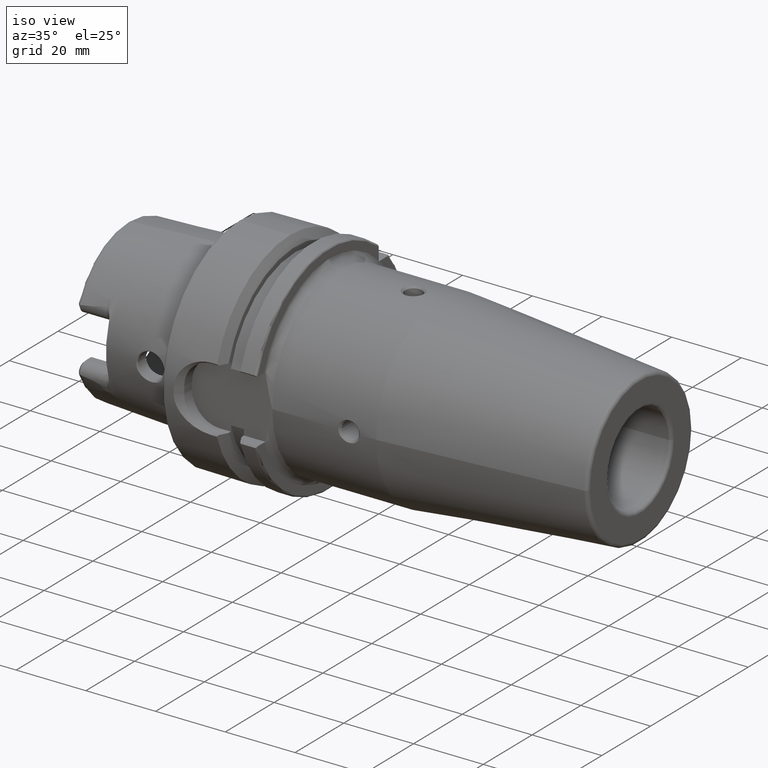
[diagram: clean part render]
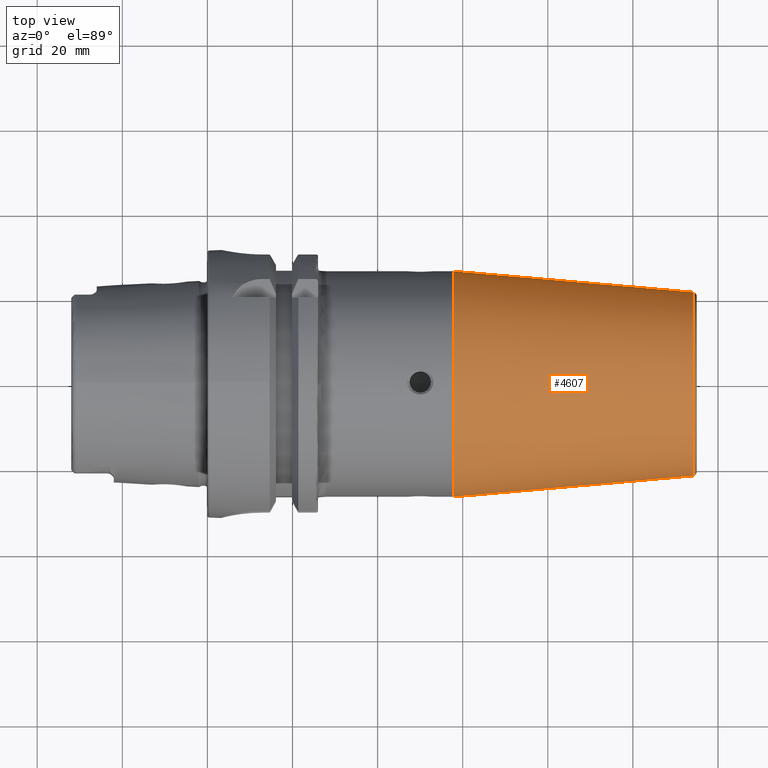
[diagram: tour spotlight — one face highlighted and labeled with its STEP entity id]
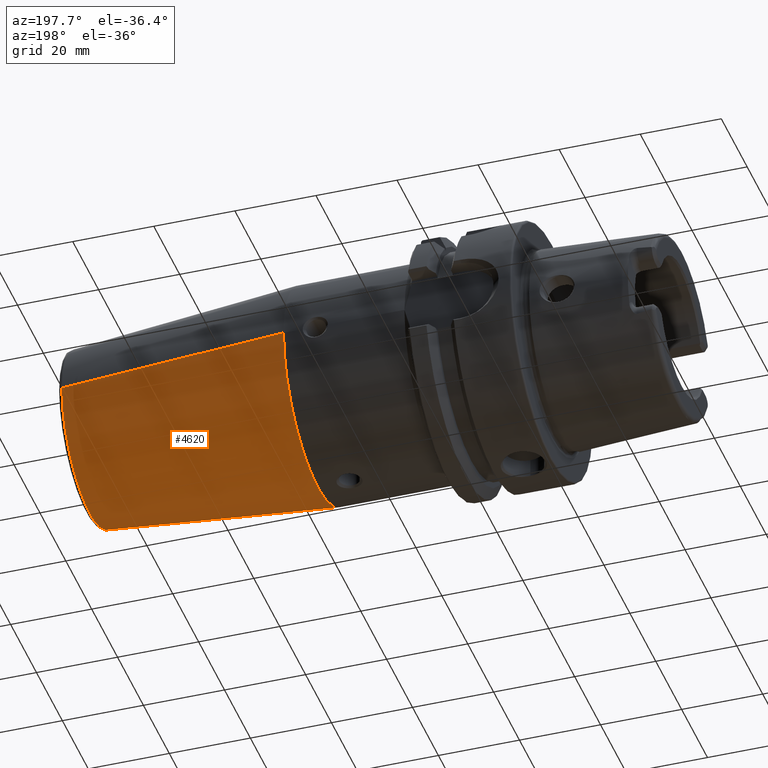
[diagram: tour spotlight — one face highlighted and labeled with its STEP entity id]
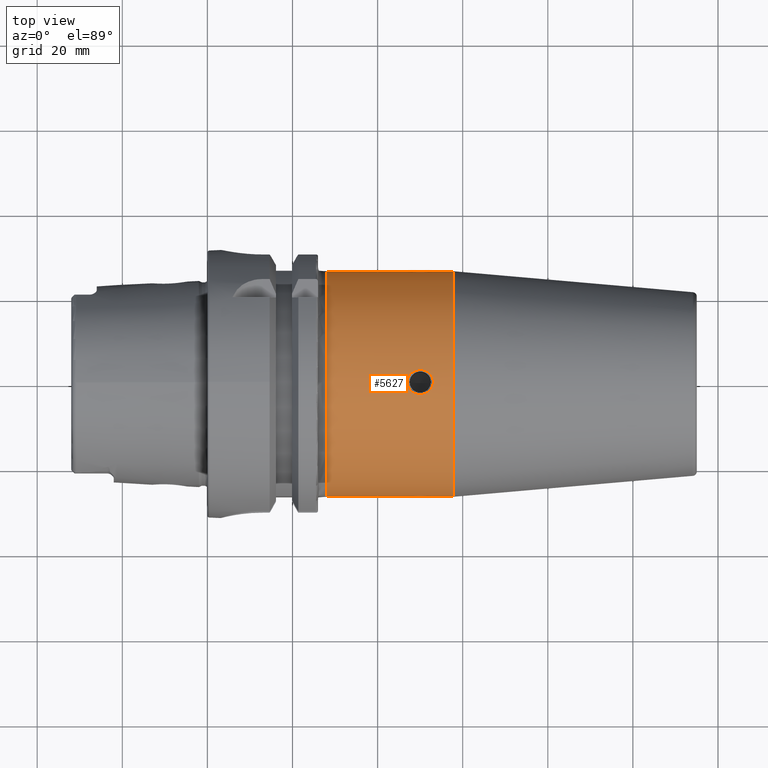
[diagram: tour spotlight — one face highlighted and labeled with its STEP entity id]
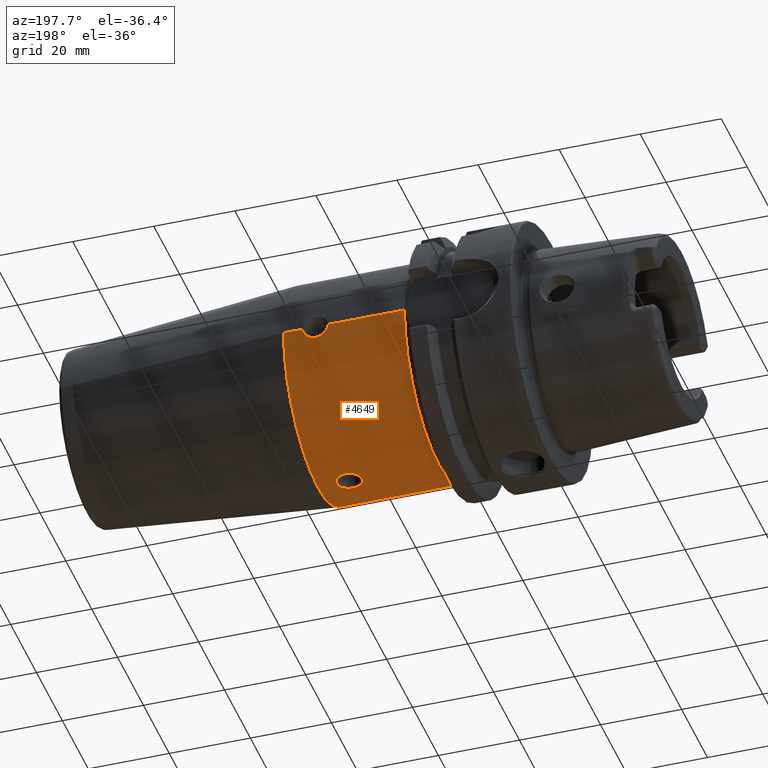
[diagram: tour spotlight — one face highlighted and labeled with its STEP entity id]
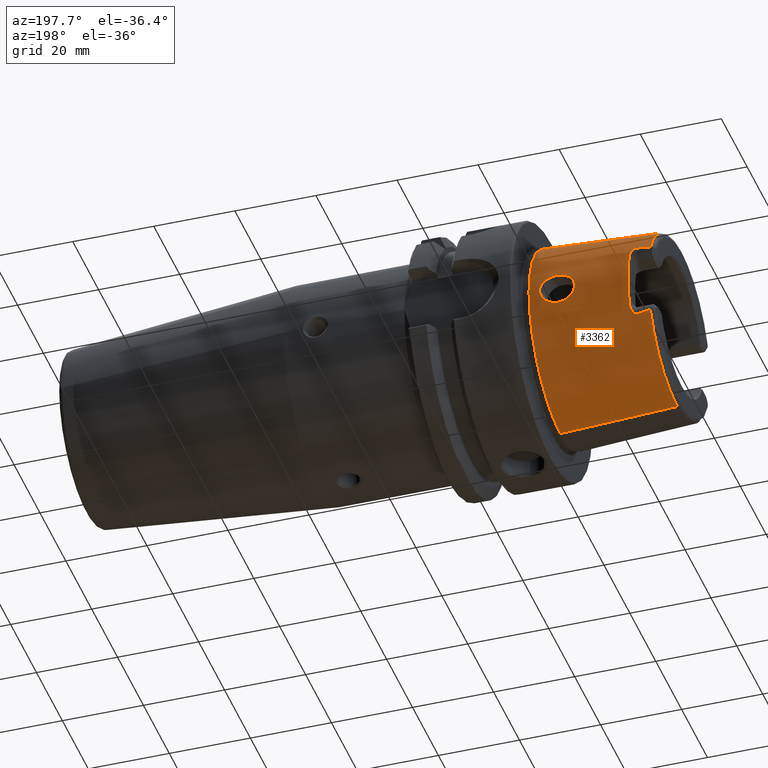
[diagram: tour spotlight — one face highlighted and labeled with its STEP entity id]
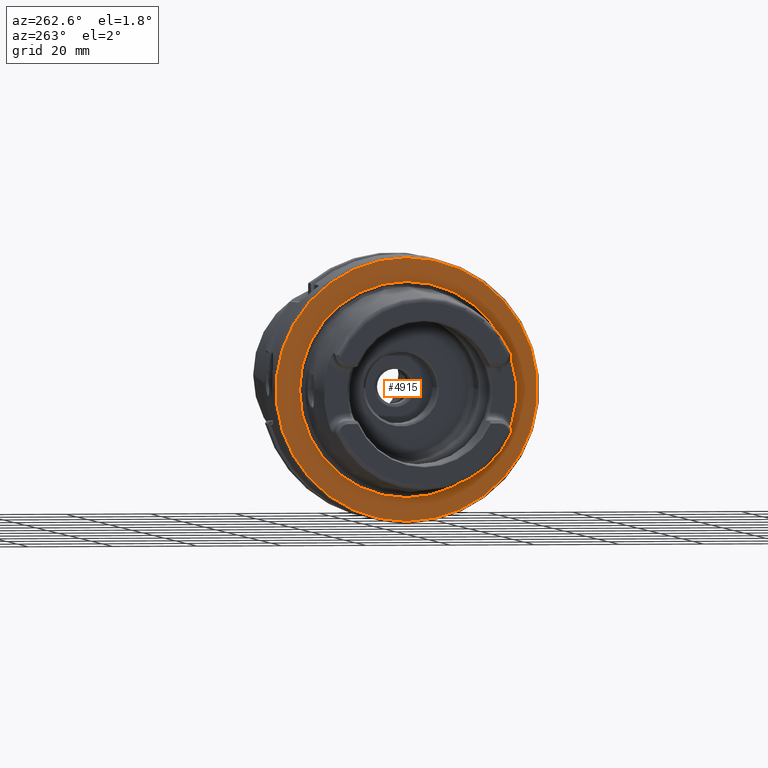
[diagram: tour spotlight — one face highlighted and labeled with its STEP entity id]
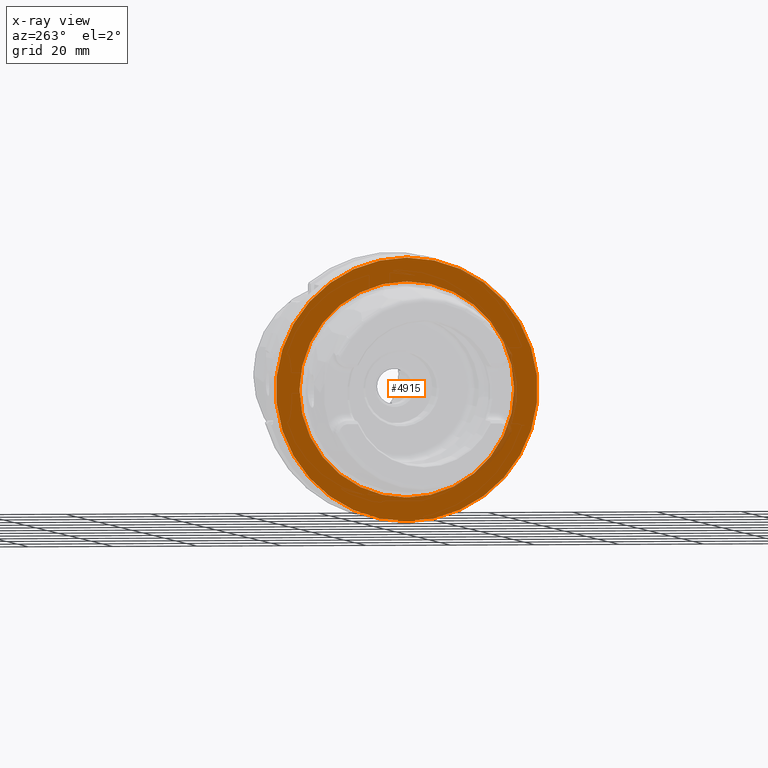
[diagram: x-ray of the same camera — body ghosted, this tour face saturated]
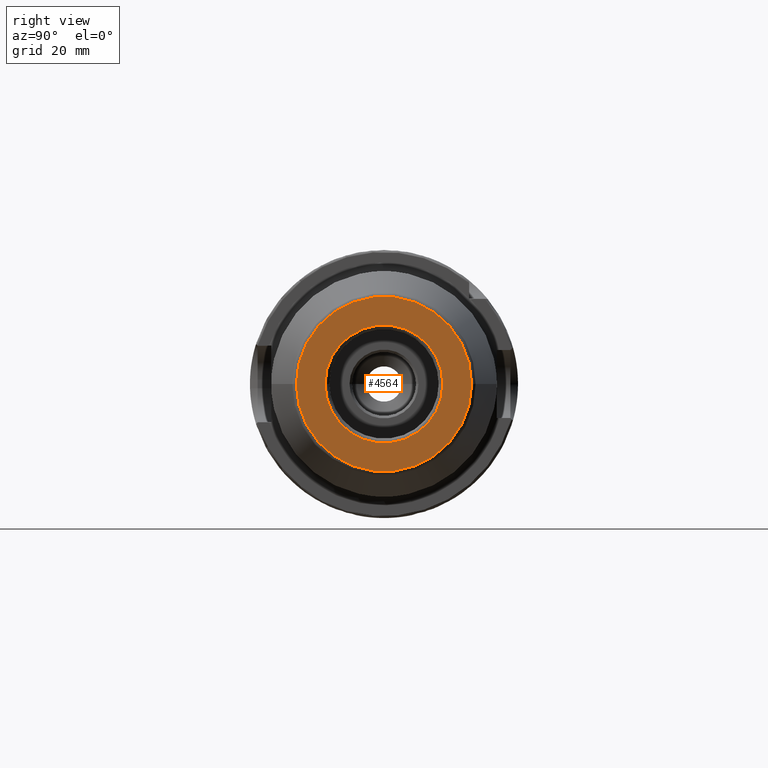
[diagram: tour spotlight — one face highlighted and labeled with its STEP entity id]
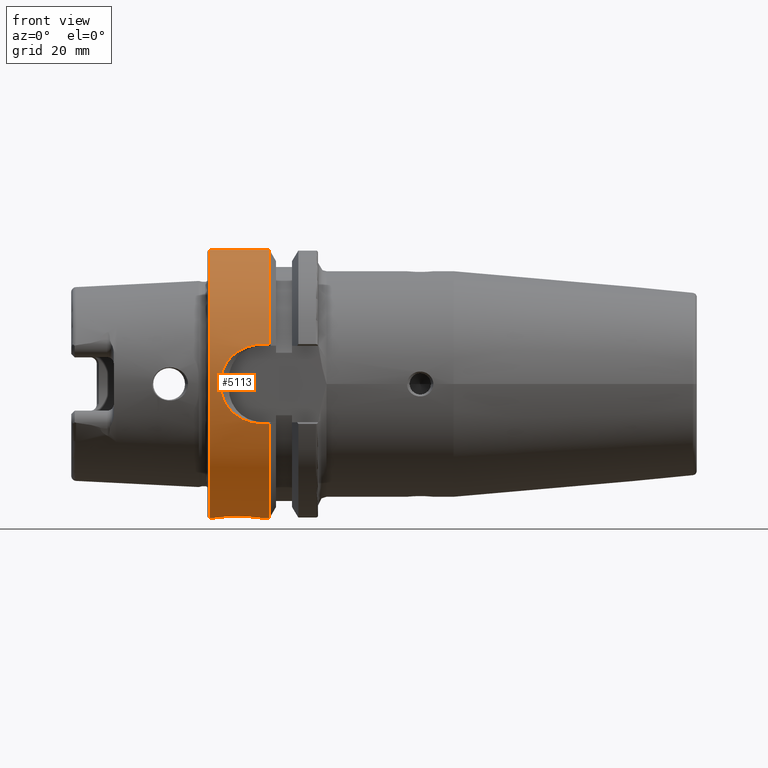
[diagram: tour spotlight — one face highlighted and labeled with its STEP entity id]
A machine part: a face-by-face anatomy tour. The part has 204 B-rep faces; the first image is the clean iso view, then the 8 largest visible faces are spotlighted one at a time (largest first), each with its STEP entity span.

Face 1 — top view, entity #4607. In plain terms, the highlighted conical surface has half-angle 5 deg.
Definition (entity closure, byte-faithful):
#1131=CARTESIAN_POINT('',(4.492399073967E0,0.E0,0.E0));
#1132=DIRECTION('',(1.E0,0.E0,0.E0));
#1133=DIRECTION('',(0.E0,1.E0,-9.979134757775E-11));
#1134=AXIS2_PLACEMENT_3D('',#1131,#1132,#1133);
#1136=DIRECTION('',(9.961946980917E-1,8.715574274766E-2,-7.119137489951E-10));
#1137=VECTOR('',#1136,2.223861538521E0);
#1138=CARTESIAN_POINT('',(2.277000000002E0,-1.0435E0,5.206615560648E-11));
#1139=LINE('',#1138,#1137);
#1145=DIRECTION('',(9.961946980917E-1,-8.715574274766E-2,7.119138695488E-10));
#1146=VECTOR('',#1145,2.223861538521E0);
#1147=CARTESIAN_POINT('',(2.277000000002E0,1.0435E0,-5.206618755445E-11));
#1148=LINE('',#1147,#1146);
#2089=CARTESIAN_POINT('',(2.277E0,0.E0,0.E0));
#2090=DIRECTION('',(-1.E0,0.E0,0.E0));
#2091=DIRECTION('',(0.E0,-1.E0,0.E0));
#2092=AXIS2_PLACEMENT_3D('',#2089,#2090,#2091);
#3163=CARTESIAN_POINT('',(2.277E0,1.0435E0,0.E0));
#3164=CARTESIAN_POINT('',(2.277E0,-1.0435E0,0.E0));
#3165=VERTEX_POINT('',#3163);
#3166=VERTEX_POINT('',#3164);
#3299=CARTESIAN_POINT('',(4.492399073967E0,-8.496776958420E-1,
8.479075555202E-11));
#3300=CARTESIAN_POINT('',(4.492399073967E0,8.496776958420E-1,
-8.479085960753E-11));
#3301=VERTEX_POINT('',#3299);
#3302=VERTEX_POINT('',#3300);
#4593=CARTESIAN_POINT('',(3.384699536984E0,0.E0,0.E0));
#4594=DIRECTION('',(-1.E0,0.E0,0.E0));
#4595=DIRECTION('',(0.E0,0.E0,-1.E0));
#4596=AXIS2_PLACEMENT_3D('',#4593,#4594,#4595);
#4597=CONICAL_SURFACE('',#4596,9.465888479210E-1,5.E0);
#4598=ORIENTED_EDGE('',*,*,#4587,.T.);
#4600=ORIENTED_EDGE('',*,*,#4599,.F.);
#4602=ORIENTED_EDGE('',*,*,#4601,.T.);
#4604=ORIENTED_EDGE('',*,*,#4603,.T.);
#4605=EDGE_LOOP('',(#4598,#4600,#4602,#4604));
#4606=FACE_OUTER_BOUND('',#4605,.F.);
#4607=ADVANCED_FACE('',(#4606),#4597,.T.);
#1135=CIRCLE('',#1134,8.496776958420E-1);
#2093=CIRCLE('',#2092,1.0435E0);
#4587=EDGE_CURVE('',#3302,#3301,#1135,.T.);
#4599=EDGE_CURVE('',#3166,#3301,#1139,.T.);
#4601=EDGE_CURVE('',#3166,#3165,#2093,.T.);
#4603=EDGE_CURVE('',#3165,#3302,#1148,.T.);

Face 2 — auxiliary view, entity #4620. In plain terms, the highlighted conical surface has half-angle 5 deg.
Definition (entity closure, byte-faithful):
#1136=DIRECTION('',(9.961946980917E-1,8.715574274766E-2,-7.119137489951E-10));
#1137=VECTOR('',#1136,2.223861538521E0);
#1138=CARTESIAN_POINT('',(2.277000000002E0,-1.0435E0,5.206615560648E-11));
#1139=LINE('',#1138,#1137);
#1140=CARTESIAN_POINT('',(4.492399073967E0,0.E0,0.E0));
#1141=DIRECTION('',(1.E0,0.E0,0.E0));
#1142=DIRECTION('',(0.E0,-1.E0,9.979166920228E-11));
#1143=AXIS2_PLACEMENT_3D('',#1140,#1141,#1142);
#1145=DIRECTION('',(9.961946980917E-1,-8.715574274766E-2,7.119138695488E-10));
#1146=VECTOR('',#1145,2.223861538521E0);
#1147=CARTESIAN_POINT('',(2.277000000002E0,1.0435E0,-5.206618755445E-11));
#1148=LINE('',#1147,#1146);
#1205=CARTESIAN_POINT('',(2.277E0,0.E0,0.E0));
#1206=DIRECTION('',(-1.E0,0.E0,0.E0));
#1207=DIRECTION('',(0.E0,1.E0,0.E0));
#1208=AXIS2_PLACEMENT_3D('',#1205,#1206,#1207);
#3163=CARTESIAN_POINT('',(2.277E0,1.0435E0,0.E0));
#3164=CARTESIAN_POINT('',(2.277E0,-1.0435E0,0.E0));
#3165=VERTEX_POINT('',#3163);
#3166=VERTEX_POINT('',#3164);
#3299=CARTESIAN_POINT('',(4.492399073967E0,-8.496776958420E-1,
8.479075555202E-11));
#3300=CARTESIAN_POINT('',(4.492399073967E0,8.496776958420E-1,
-8.479085960753E-11));
#3301=VERTEX_POINT('',#3299);
#3302=VERTEX_POINT('',#3300);
#4608=CARTESIAN_POINT('',(3.384699536984E0,0.E0,0.E0));
#4609=DIRECTION('',(-1.E0,0.E0,0.E0));
#4610=DIRECTION('',(0.E0,0.E0,-1.E0));
#4611=AXIS2_PLACEMENT_3D('',#4608,#4609,#4610);
#4612=CONICAL_SURFACE('',#4611,9.465888479210E-1,5.E0);
#4613=ORIENTED_EDGE('',*,*,#4573,.T.);
#4614=ORIENTED_EDGE('',*,*,#4603,.F.);
#4616=ORIENTED_EDGE('',*,*,#4615,.T.);
#4617=ORIENTED_EDGE('',*,*,#4599,.T.);
#4618=EDGE_LOOP('',(#4613,#4614,#4616,#4617));
#4619=FACE_OUTER_BOUND('',#4618,.F.);
#4620=ADVANCED_FACE('',(#4619),#4612,.T.);
#1144=CIRCLE('',#1143,8.496776958420E-1);
#1209=CIRCLE('',#1208,1.0435E0);
#4573=EDGE_CURVE('',#3301,#3302,#1144,.T.);
#4599=EDGE_CURVE('',#3166,#3301,#1139,.T.);
#4603=EDGE_CURVE('',#3165,#3302,#1148,.T.);
#4615=EDGE_CURVE('',#3165,#3166,#1209,.T.);

Face 3 — top view, entity #5627. In plain terms, the highlighted cylindrical surface (partial cylindrical patch) has radius 26.5049 mm, axis along (1, 0, 0).
Definition (entity closure, byte-faithful):
#1181=DIRECTION('',(-9.999999986545E-1,5.183210799015E-5,2.114578089259E-6));
#1182=VECTOR('',#1181,7.443779537558E-1);
#1183=CARTESIAN_POINT('',(1.847E0,-1.0435E0,0.E0));
#1184=LINE('',#1183,#1182);
#1201=DIRECTION('',(-1.E0,-9.204107010504E-13,-2.799259844373E-10));
#1202=VECTOR('',#1201,1.860000000020E-1);
#1203=CARTESIAN_POINT('',(2.277000000002E0,-1.0435E0,5.206615560648E-11));
#1204=LINE('',#1203,#1202);
#1210=DIRECTION('',(-1.E0,9.216044892490E-13,2.799255677738E-10));
#1211=VECTOR('',#1210,1.860000000020E-1);
#1212=CARTESIAN_POINT('',(2.277000000002E0,1.0435E0,-5.206618755445E-11));
#1213=LINE('',#1212,#1211);
#1230=DIRECTION('',(-9.999999986560E-1,-5.183210676057E-5,-1.169871069915E-6));
#1231=VECTOR('',#1230,7.443779537558E-1);
#1232=CARTESIAN_POINT('',(1.847E0,1.0435E0,0.E0));
#1233=LINE('',#1232,#1231);
#2008=CARTESIAN_POINT('',(1.102622047244E0,0.E0,0.E0));
#2009=DIRECTION('',(1.E0,0.E0,0.E0));
#2010=DIRECTION('',(0.E0,1.E0,0.E0));
#2011=AXIS2_PLACEMENT_3D('',#2008,#2009,#2010);
#2041=CARTESIAN_POINT('',(2.091E0,0.E0,1.0435E0));
#2042=CARTESIAN_POINT('',(2.091E0,-1.073930397673E-2,1.0435E0));
#2043=CARTESIAN_POINT('',(2.087942084948E0,-3.115248181439E-2,
1.043174332572E0));
#2044=CARTESIAN_POINT('',(2.075277307073E0,-5.929658728939E-2,
1.041922601307E0));
#2045=CARTESIAN_POINT('',(2.056004360156E0,-8.275489372398E-2,
1.040283492442E0));
#2046=CARTESIAN_POINT('',(2.030912225834E0,-1.010638086817E-1,
1.038631239464E0));
#2047=CARTESIAN_POINT('',(2.001364906655E0,-1.128144718694E-1,
1.037392721749E0));
#2048=CARTESIAN_POINT('',(1.969153273954E0,-1.169400755873E-1,
1.036925155844E0));
#2049=CARTESIAN_POINT('',(1.937001577499E0,-1.129009262334E-1,
1.037383047187E0));
#2050=CARTESIAN_POINT('',(1.907473681617E0,-1.012701855472E-1,
1.038610546673E0));
#2051=CARTESIAN_POINT('',(1.882348597244E0,-8.308214288243E-2,
1.040256544689E0));
#2052=CARTESIAN_POINT('',(1.862946264811E0,-5.967965826528E-2,
1.041901338618E0));
#2053=CARTESIAN_POINT('',(1.850094499665E0,-3.135340003162E-2,
1.043170265848E0));
#2054=CARTESIAN_POINT('',(1.847E0,-1.081546503154E-2,1.0435E0));
#2055=CARTESIAN_POINT('',(1.847E0,0.E0,1.0435E0));
#2057=CARTESIAN_POINT('',(1.847E0,0.E0,1.0435E0));
#2058=CARTESIAN_POINT('',(1.847E0,1.073930397673E-2,1.0435E0));
#2059=CARTESIAN_POINT('',(1.850057915052E0,3.115248181439E-2,1.043174332572E0));
#2060=CARTESIAN_POINT('',(1.862722692927E0,5.929658728938E-2,1.041922601307E0));
#2061=CARTESIAN_POINT('',(1.881995639844E0,8.275489372398E-2,1.040283492442E0));
#2062=CARTESIAN_POINT('',(1.907087774166E0,1.010638086817E-1,1.038631239464E0));
#2063=CARTESIAN_POINT('',(1.936635093345E0,1.128144718694E-1,1.037392721749E0));
#2064=CARTESIAN_POINT('',(1.968846726046E0,1.169400755873E-1,1.036925155844E0));
#2065=CARTESIAN_POINT('',(2.000998422501E0,1.129009262334E-1,1.037383047187E0));
#2066=CARTESIAN_POINT('',(2.030526318383E0,1.012701855472E-1,1.038610546673E0));
#2067=CARTESIAN_POINT('',(2.055651402756E0,8.308214288243E-2,1.040256544689E0));
#2068=CARTESIAN_POINT('',(2.075053735189E0,5.967965826528E-2,1.041901338618E0));
#2069=CARTESIAN_POINT('',(2.087905500335E0,3.135340003162E-2,1.043170265848E0));
#2070=CARTESIAN_POINT('',(2.091E0,1.081546503154E-2,1.0435E0));
#2071=CARTESIAN_POINT('',(2.091E0,0.E0,1.0435E0));
#2073=CARTESIAN_POINT('',(2.091E0,1.0435E0,0.E0));
#2074=CARTESIAN_POINT('',(2.091E0,1.0435E0,1.077914348355E-2));
#2075=CARTESIAN_POINT('',(2.087916953086E0,1.043171761539E0,3.125357791237E-2));
#2076=CARTESIAN_POINT('',(2.075208794940E0,1.041915801597E0,5.941827371495E-2));
#2077=CARTESIAN_POINT('',(2.055862961457E0,1.040273405348E0,8.287597870930E-2));
#2078=CARTESIAN_POINT('',(2.030882076541E0,1.038629112745E0,1.010832882902E-1));
#2079=CARTESIAN_POINT('',(2.001171796292E0,1.037387246564E0,1.128654953266E-1));
#2080=CARTESIAN_POINT('',(1.969099115055E0,1.036925528250E0,1.169364926465E-1));
#2081=CARTESIAN_POINT('',(1.936857646691E0,1.037386976486E0,1.128647393539E-1));
#2082=CARTESIAN_POINT('',(1.907455279033E0,1.038612224873E0,1.012533663025E-1));
#2083=CARTESIAN_POINT('',(1.882304076255E0,1.040259690676E0,8.304262889159E-2));
#2084=CARTESIAN_POINT('',(1.862943779979E0,1.041901791265E0,5.966830922550E-2));
#2085=CARTESIAN_POINT('',(1.850092624079E0,1.043170397471E0,3.134823463935E-2));
#2086=CARTESIAN_POINT('',(1.847E0,1.0435E0,1.081455532667E-2));
#2087=CARTESIAN_POINT('',(1.847E0,1.0435E0,0.E0));
#2089=CARTESIAN_POINT('',(2.277E0,0.E0,0.E0));
#2090=DIRECTION('',(-1.E0,0.E0,0.E0));
#2091=DIRECTION('',(0.E0,-1.E0,0.E0));
#2092=AXIS2_PLACEMENT_3D('',#2089,#2090,#2091);
#2094=CARTESIAN_POINT('',(1.847E0,-1.0435E0,0.E0));
#2095=CARTESIAN_POINT('',(1.847E0,-1.0435E0,1.079054151052E-2));
#2096=CARTESIAN_POINT('',(1.850090362617E0,-1.043171000174E0,
3.128173550020E-2));
#2097=CARTESIAN_POINT('',(1.862807259841E0,-1.041914260788E0,
5.944485859346E-2));
#2098=CARTESIAN_POINT('',(1.882164750591E0,-1.040271355362E0,
8.290091292372E-2));
#2099=CARTESIAN_POINT('',(1.907134777339E0,-1.038628197814E0,
1.010921271180E-1));
#2100=CARTESIAN_POINT('',(1.936857268382E0,-1.037386393287E0,
1.128733628828E-1));
#2101=CARTESIAN_POINT('',(1.968920250032E0,-1.036925657447E0,
1.169352249268E-1));
#2102=CARTESIAN_POINT('',(2.001154787278E0,-1.037387306674E0,
1.128619992303E-1));
#2103=CARTESIAN_POINT('',(2.030559539628E0,-1.038613079376E0,
1.012441718834E-1));
#2104=CARTESIAN_POINT('',(2.055696062831E0,-1.040259724379E0,
8.304292364158E-2));
#2105=CARTESIAN_POINT('',(2.075065466003E0,-1.041902623171E0,
5.965327112661E-2));
#2106=CARTESIAN_POINT('',(2.087903875380E0,-1.043170073104E0,
3.135431850534E-2));
#2107=CARTESIAN_POINT('',(2.091E0,-1.0435E0,1.081720428404E-2));
#2108=CARTESIAN_POINT('',(2.091E0,-1.0435E0,0.E0));
#3163=CARTESIAN_POINT('',(2.277E0,1.0435E0,0.E0));
#3164=CARTESIAN_POINT('',(2.277E0,-1.0435E0,0.E0));
#3165=VERTEX_POINT('',#3163);
#3166=VERTEX_POINT('',#3164);
#3177=VERTEX_POINT('',#2041);
#3178=VERTEX_POINT('',#2055);
#3245=VERTEX_POINT('',#2094);
#3246=VERTEX_POINT('',#2108);
#3269=VERTEX_POINT('',#2073);
#3270=VERTEX_POINT('',#2087);
#3291=CARTESIAN_POINT('',(1.102622047246E0,-1.043461417322E0,
1.574045311065E-6));
#3292=VERTEX_POINT('',#3291);
#3293=CARTESIAN_POINT('',(1.102622047245E0,1.043461417322E0,
-8.708262332137E-7));
#3294=VERTEX_POINT('',#3293);
#5604=CARTESIAN_POINT('',(0.E0,0.E0,0.E0));
#5605=DIRECTION('',(1.E0,0.E0,0.E0));
#5606=DIRECTION('',(0.E0,-1.E0,0.E0));
#5607=AXIS2_PLACEMENT_3D('',#5604,#5605,#5606);
#5608=CYLINDRICAL_SURFACE('',#5607,1.0435E0);
#5609=ORIENTED_EDGE('',*,*,#5590,.F.);
#5610=ORIENTED_EDGE('',*,*,#4639,.F.);
#5612=ORIENTED_EDGE('',*,*,#5611,.F.);
#5613=ORIENTED_EDGE('',*,*,#4635,.F.);
#5614=ORIENTED_EDGE('',*,*,#4601,.F.);
#5615=ORIENTED_EDGE('',*,*,#4632,.T.);
#5617=ORIENTED_EDGE('',*,*,#5616,.F.);
#5618=ORIENTED_EDGE('',*,*,#4628,.T.);
#5619=EDGE_LOOP('',(#5609,#5610,#5612,#5613,#5614,#5615,#5617,#5618));
#5620=FACE_OUTER_BOUND('',#5619,.F.);
#5622=ORIENTED_EDGE('',*,*,#5621,.F.);
#5624=ORIENTED_EDGE('',*,*,#5623,.F.);
#5625=EDGE_LOOP('',(#5622,#5624));
#5626=FACE_BOUND('',#5625,.F.);
#5627=ADVANCED_FACE('',(#5620,#5626),#5608,.T.);
#2012=CIRCLE('',#2011,1.0435E0);
#2056=B_SPLINE_CURVE_WITH_KNOTS('',3,(#2041,#2042,#2043,#2044,#2045,#2046,#2047,
#2048,#2049,#2050,#2051,#2052,#2053,#2054,#2055),.UNSPECIFIED.,.F.,.F.,(4,1,1,1,
1,1,1,1,1,1,1,1,4),(0.E0,8.333333333333E-2,1.666666666667E-1,2.5E-1,
3.333333333333E-1,4.166666666667E-1,5.E-1,5.833333333333E-1,6.666666666667E-1,
7.5E-1,8.333333333333E-1,9.166666666667E-1,1.E0),.UNSPECIFIED.);
#2072=B_SPLINE_CURVE_WITH_KNOTS('',3,(#2057,#2058,#2059,#2060,#2061,#2062,#2063,
#2064,#2065,#2066,#2067,#2068,#2069,#2070,#2071),.UNSPECIFIED.,.F.,.F.,(4,1,1,1,
1,1,1,1,1,1,1,1,4),(0.E0,8.333333333333E-2,1.666666666667E-1,2.5E-1,
3.333333333333E-1,4.166666666667E-1,5.E-1,5.833333333333E-1,6.666666666667E-1,
7.5E-1,8.333333333333E-1,9.166666666667E-1,1.E0),.UNSPECIFIED.);
#2088=B_SPLINE_CURVE_WITH_KNOTS('',3,(#2073,#2074,#2075,#2076,#2077,#2078,#2079,
#2080,#2081,#2082,#2083,#2084,#2085,#2086,#2087),.UNSPECIFIED.,.F.,.F.,(4,1,1,1,
1,1,1,1,1,1,1,1,4),(0.E0,8.333333333333E-2,1.666666666667E-1,2.5E-1,
3.333333333333E-1,4.166666666667E-1,5.E-1,5.833333333333E-1,6.666666666667E-1,
7.5E-1,8.333333333333E-1,9.166666666667E-1,1.E0),.UNSPECIFIED.);
#2093=CIRCLE('',#2092,1.0435E0);
#2109=B_SPLINE_CURVE_WITH_KNOTS('',3,(#2094,#2095,#2096,#2097,#2098,#2099,#2100,
#2101,#2102,#2103,#2104,#2105,#2106,#2107,#2108),.UNSPECIFIED.,.F.,.F.,(4,1,1,1,
1,1,1,1,1,1,1,1,4),(0.E0,8.333333333333E-2,1.666666666667E-1,2.5E-1,
3.333333333333E-1,4.166666666667E-1,5.E-1,5.833333333333E-1,6.666666666667E-1,
7.5E-1,8.333333333333E-1,9.166666666667E-1,1.E0),.UNSPECIFIED.);
#4601=EDGE_CURVE('',#3166,#3165,#2093,.T.);
#4628=EDGE_CURVE('',#3245,#3292,#1184,.T.);
#4632=EDGE_CURVE('',#3166,#3246,#1204,.T.);
#4635=EDGE_CURVE('',#3165,#3269,#1213,.T.);
#4639=EDGE_CURVE('',#3270,#3294,#1233,.T.);
#5590=EDGE_CURVE('',#3294,#3292,#2012,.T.);
#5611=EDGE_CURVE('',#3269,#3270,#2088,.T.);
#5616=EDGE_CURVE('',#3245,#3246,#2109,.T.);
#5621=EDGE_CURVE('',#3177,#3178,#2056,.T.);
#5623=EDGE_CURVE('',#3178,#3177,#2072,.T.);

Face 4 — auxiliary view, entity #4649. In plain terms, the highlighted cylindrical surface (partial cylindrical patch) has radius 26.5049 mm, axis along (1, 0, 0).
Definition (entity closure, byte-faithful):
#1149=CARTESIAN_POINT('',(2.091E0,0.E0,-1.0435E0));
#1150=CARTESIAN_POINT('',(2.091E0,1.073930397673E-2,-1.0435E0));
#1151=CARTESIAN_POINT('',(2.087942084948E0,3.115248181439E-2,
-1.043174332572E0));
#1152=CARTESIAN_POINT('',(2.075277307073E0,5.929658728938E-2,
-1.041922601307E0));
#1153=CARTESIAN_POINT('',(2.056004360156E0,8.275489372398E-2,
-1.040283492442E0));
#1154=CARTESIAN_POINT('',(2.030912225834E0,1.010638086817E-1,
-1.038631239464E0));
#1155=CARTESIAN_POINT('',(2.001364906655E0,1.128144718694E-1,
-1.037392721749E0));
#1156=CARTESIAN_POINT('',(1.969153273954E0,1.169400755873E-1,
-1.036925155844E0));
#1157=CARTESIAN_POINT('',(1.937001577499E0,1.129009262334E-1,
-1.037383047187E0));
#1158=CARTESIAN_POINT('',(1.907473681617E0,1.012701855472E-1,
-1.038610546673E0));
#1159=CARTESIAN_POINT('',(1.882348597244E0,8.308214288243E-2,
-1.040256544689E0));
#1160=CARTESIAN_POINT('',(1.862946264811E0,5.967965826528E-2,
-1.041901338618E0));
#1161=CARTESIAN_POINT('',(1.850094499665E0,3.135340003162E-2,
-1.043170265848E0));
#1162=CARTESIAN_POINT('',(1.847E0,1.081546503154E-2,-1.0435E0));
#1163=CARTESIAN_POINT('',(1.847E0,0.E0,-1.0435E0));
#1165=CARTESIAN_POINT('',(1.847E0,0.E0,-1.0435E0));
#1166=CARTESIAN_POINT('',(1.847E0,-1.073930397673E-2,-1.0435E0));
#1167=CARTESIAN_POINT('',(1.850057915052E0,-3.115248181439E-2,
-1.043174332572E0));
#1168=CARTESIAN_POINT('',(1.862722692927E0,-5.929658728938E-2,
-1.041922601307E0));
#1169=CARTESIAN_POINT('',(1.881995639844E0,-8.275489372398E-2,
-1.040283492442E0));
#1170=CARTESIAN_POINT('',(1.907087774166E0,-1.010638086817E-1,
-1.038631239464E0));
#1171=CARTESIAN_POINT('',(1.936635093345E0,-1.128144718694E-1,
-1.037392721749E0));
#1172=CARTESIAN_POINT('',(1.968846726046E0,-1.169400755873E-1,
-1.036925155844E0));
#1173=CARTESIAN_POINT('',(2.000998422501E0,-1.129009262334E-1,
-1.037383047187E0));
#1174=CARTESIAN_POINT('',(2.030526318383E0,-1.012701855472E-1,
-1.038610546673E0));
#1175=CARTESIAN_POINT('',(2.055651402756E0,-8.308214288243E-2,
-1.040256544689E0));
#1176=CARTESIAN_POINT('',(2.075053735189E0,-5.967965826528E-2,
-1.041901338618E0));
#1177=CARTESIAN_POINT('',(2.087905500335E0,-3.135340003162E-2,
-1.043170265848E0));
#1178=CARTESIAN_POINT('',(2.091E0,-1.081546503155E-2,-1.0435E0));
#1179=CARTESIAN_POINT('',(2.091E0,0.E0,-1.0435E0));
#1181=DIRECTION('',(-9.999999986545E-1,5.183210799015E-5,2.114578089259E-6));
#1182=VECTOR('',#1181,7.443779537558E-1);
#1183=CARTESIAN_POINT('',(1.847E0,-1.0435E0,0.E0));
#1184=LINE('',#1183,#1182);
#1185=CARTESIAN_POINT('',(2.091E0,-1.0435E0,0.E0));
#1186=CARTESIAN_POINT('',(2.091E0,-1.0435E0,-1.077914348355E-2));
#1187=CARTESIAN_POINT('',(2.087916953086E0,-1.043171761539E0,
-3.125357791238E-2));
#1188=CARTESIAN_POINT('',(2.075208794940E0,-1.041915801597E0,
-5.941827371495E-2));
#1189=CARTESIAN_POINT('',(2.055862961457E0,-1.040273405348E0,
-8.287597870930E-2));
#1190=CARTESIAN_POINT('',(2.030882076541E0,-1.038629112745E0,
-1.010832882902E-1));
#1191=CARTESIAN_POINT('',(2.001171796292E0,-1.037387246564E0,
-1.128654953266E-1));
#1192=CARTESIAN_POINT('',(1.969099115055E0,-1.036925528250E0,
-1.169364926465E-1));
#1193=CARTESIAN_POINT('',(1.936857646691E0,-1.037386976486E0,
-1.128647393539E-1));
#1194=CARTESIAN_POINT('',(1.907455279033E0,-1.038612224873E0,
-1.012533663025E-1));
#1195=CARTESIAN_POINT('',(1.882304076255E0,-1.040259690676E0,
-8.304262889159E-2));
#1196=CARTESIAN_POINT('',(1.862943779979E0,-1.041901791265E0,
-5.966830922550E-2));
#1197=CARTESIAN_POINT('',(1.850092624079E0,-1.043170397471E0,
-3.134823463935E-2));
#1198=CARTESIAN_POINT('',(1.847E0,-1.0435E0,-1.081455532667E-2));
#1199=CARTESIAN_POINT('',(1.847E0,-1.0435E0,0.E0));
#1201=DIRECTION('',(-1.E0,-9.204107010504E-13,-2.799259844373E-10));
#1202=VECTOR('',#1201,1.860000000020E-1);
#1203=CARTESIAN_POINT('',(2.277000000002E0,-1.0435E0,5.206615560648E-11));
#1204=LINE('',#1203,#1202);
#1205=CARTESIAN_POINT('',(2.277E0,0.E0,0.E0));
#1206=DIRECTION('',(-1.E0,0.E0,0.E0));
#1207=DIRECTION('',(0.E0,1.E0,0.E0));
#1208=AXIS2_PLACEMENT_3D('',#1205,#1206,#1207);
#1210=DIRECTION('',(-1.E0,9.216044892490E-13,2.799255677738E-10));
#1211=VECTOR('',#1210,1.860000000020E-1);
#1212=CARTESIAN_POINT('',(2.277000000002E0,1.0435E0,-5.206618755445E-11));
#1213=LINE('',#1212,#1211);
#1214=CARTESIAN_POINT('',(1.847E0,1.0435E0,0.E0));
#1215=CARTESIAN_POINT('',(1.847E0,1.0435E0,-1.079054151052E-2));
#1216=CARTESIAN_POINT('',(1.850090362617E0,1.043171000174E0,
-3.128173550020E-2));
#1217=CARTESIAN_POINT('',(1.862807259841E0,1.041914260788E0,
-5.944485859346E-2));
#1218=CARTESIAN_POINT('',(1.882164750591E0,1.040271355362E0,
-8.290091292372E-2));
#1219=CARTESIAN_POINT('',(1.907134777339E0,1.038628197814E0,
-1.010921271180E-1));
#1220=CARTESIAN_POINT('',(1.936857268382E0,1.037386393287E0,
-1.128733628828E-1));
#1221=CARTESIAN_POINT('',(1.968920250032E0,1.036925657447E0,
-1.169352249268E-1));
#1222=CARTESIAN_POINT('',(2.001154787278E0,1.037387306674E0,
-1.128619992303E-1));
#1223=CARTESIAN_POINT('',(2.030559539628E0,1.038613079376E0,
-1.012441718834E-1));
#1224=CARTESIAN_POINT('',(2.055696062831E0,1.040259724379E0,
-8.304292364158E-2));
#1225=CARTESIAN_POINT('',(2.075065466003E0,1.041902623171E0,
-5.965327112661E-2));
#1226=CARTESIAN_POINT('',(2.087903875380E0,1.043170073104E0,
-3.135431850534E-2));
#1227=CARTESIAN_POINT('',(2.091E0,1.0435E0,-1.081720428404E-2));
#1228=CARTESIAN_POINT('',(2.091E0,1.0435E0,0.E0));
#1230=DIRECTION('',(-9.999999986560E-1,-5.183210676057E-5,-1.169871069915E-6));
#1231=VECTOR('',#1230,7.443779537558E-1);
#1232=CARTESIAN_POINT('',(1.847E0,1.0435E0,0.E0));
#1233=LINE('',#1232,#1231);
#1278=CARTESIAN_POINT('',(1.102622047244E0,0.E0,0.E0));
#1279=DIRECTION('',(1.E0,0.E0,0.E0));
#1280=DIRECTION('',(0.E0,-1.E0,0.E0));
#1281=AXIS2_PLACEMENT_3D('',#1278,#1279,#1280);
#2073=CARTESIAN_POINT('',(2.091E0,1.0435E0,0.E0));
#2087=CARTESIAN_POINT('',(1.847E0,1.0435E0,0.E0));
#2094=CARTESIAN_POINT('',(1.847E0,-1.0435E0,0.E0));
#2108=CARTESIAN_POINT('',(2.091E0,-1.0435E0,0.E0));
#3163=CARTESIAN_POINT('',(2.277E0,1.0435E0,0.E0));
#3164=CARTESIAN_POINT('',(2.277E0,-1.0435E0,0.E0));
#3165=VERTEX_POINT('',#3163);
#3166=VERTEX_POINT('',#3164);
#3245=VERTEX_POINT('',#2094);
#3246=VERTEX_POINT('',#2108);
#3257=VERTEX_POINT('',#1149);
#3258=VERTEX_POINT('',#1163);
#3269=VERTEX_POINT('',#2073);
#3270=VERTEX_POINT('',#2087);
#3291=CARTESIAN_POINT('',(1.102622047246E0,-1.043461417322E0,
1.574045311065E-6));
#3292=VERTEX_POINT('',#3291);
#3293=CARTESIAN_POINT('',(1.102622047245E0,1.043461417322E0,
-8.708262332137E-7));
#3294=VERTEX_POINT('',#3293);
#4621=CARTESIAN_POINT('',(0.E0,0.E0,0.E0));
#4622=DIRECTION('',(1.E0,0.E0,0.E0));
#4623=DIRECTION('',(0.E0,-1.E0,0.E0));
#4624=AXIS2_PLACEMENT_3D('',#4621,#4622,#4623);
#4625=CYLINDRICAL_SURFACE('',#4624,1.0435E0);
#4627=ORIENTED_EDGE('',*,*,#4626,.F.);
#4629=ORIENTED_EDGE('',*,*,#4628,.F.);
#4631=ORIENTED_EDGE('',*,*,#4630,.F.);
#4633=ORIENTED_EDGE('',*,*,#4632,.F.);
#4634=ORIENTED_EDGE('',*,*,#4615,.F.);
#4636=ORIENTED_EDGE('',*,*,#4635,.T.);
#4638=ORIENTED_EDGE('',*,*,#4637,.F.);
#4640=ORIENTED_EDGE('',*,*,#4639,.T.);
#4641=EDGE_LOOP('',(#4627,#4629,#4631,#4633,#4634,#4636,#4638,#4640));
#4642=FACE_OUTER_BOUND('',#4641,.F.);
#4644=ORIENTED_EDGE('',*,*,#4643,.F.);
#4646=ORIENTED_EDGE('',*,*,#4645,.F.);
#4647=EDGE_LOOP('',(#4644,#4646));
#4648=FACE_BOUND('',#4647,.F.);
#4649=ADVANCED_FACE('',(#4642,#4648),#4625,.T.);
#1164=B_SPLINE_CURVE_WITH_KNOTS('',3,(#1149,#1150,#1151,#1152,#1153,#1154,#1155,
#1156,#1157,#1158,#1159,#1160,#1161,#1162,#1163),.UNSPECIFIED.,.F.,.F.,(4,1,1,1,
1,1,1,1,1,1,1,1,4),(0.E0,8.333333333333E-2,1.666666666667E-1,2.5E-1,
3.333333333333E-1,4.166666666667E-1,5.E-1,5.833333333333E-1,6.666666666667E-1,
7.5E-1,8.333333333333E-1,9.166666666667E-1,1.E0),.UNSPECIFIED.);
#1180=B_SPLINE_CURVE_WITH_KNOTS('',3,(#1165,#1166,#1167,#1168,#1169,#1170,#1171,
#1172,#1173,#1174,#1175,#1176,#1177,#1178,#1179),.UNSPECIFIED.,.F.,.F.,(4,1,1,1,
1,1,1,1,1,1,1,1,4),(0.E0,8.333333333333E-2,1.666666666667E-1,2.5E-1,
3.333333333333E-1,4.166666666667E-1,5.E-1,5.833333333333E-1,6.666666666667E-1,
7.5E-1,8.333333333333E-1,9.166666666667E-1,1.E0),.UNSPECIFIED.);
#1200=B_SPLINE_CURVE_WITH_KNOTS('',3,(#1185,#1186,#1187,#1188,#1189,#1190,#1191,
#1192,#1193,#1194,#1195,#1196,#1197,#1198,#1199),.UNSPECIFIED.,.F.,.F.,(4,1,1,1,
1,1,1,1,1,1,1,1,4),(0.E0,8.333333333333E-2,1.666666666667E-1,2.5E-1,
3.333333333333E-1,4.166666666667E-1,5.E-1,5.833333333333E-1,6.666666666667E-1,
7.5E-1,8.333333333333E-1,9.166666666667E-1,1.E0),.UNSPECIFIED.);
#1209=CIRCLE('',#1208,1.0435E0);
#1229=B_SPLINE_CURVE_WITH_KNOTS('',3,(#1214,#1215,#1216,#1217,#1218,#1219,#1220,
#1221,#1222,#1223,#1224,#1225,#1226,#1227,#1228),.UNSPECIFIED.,.F.,.F.,(4,1,1,1,
1,1,1,1,1,1,1,1,4),(0.E0,8.333333333333E-2,1.666666666667E-1,2.5E-1,
3.333333333333E-1,4.166666666667E-1,5.E-1,5.833333333333E-1,6.666666666667E-1,
7.5E-1,8.333333333333E-1,9.166666666667E-1,1.E0),.UNSPECIFIED.);
#1282=CIRCLE('',#1281,1.0435E0);
#4615=EDGE_CURVE('',#3165,#3166,#1209,.T.);
#4626=EDGE_CURVE('',#3292,#3294,#1282,.T.);
#4628=EDGE_CURVE('',#3245,#3292,#1184,.T.);
#4630=EDGE_CURVE('',#3246,#3245,#1200,.T.);
#4632=EDGE_CURVE('',#3166,#3246,#1204,.T.);
#4635=EDGE_CURVE('',#3165,#3269,#1213,.T.);
#4637=EDGE_CURVE('',#3270,#3269,#1229,.T.);
#4639=EDGE_CURVE('',#3270,#3294,#1233,.T.);
#4643=EDGE_CURVE('',#3257,#3258,#1164,.T.);
#4645=EDGE_CURVE('',#3258,#3257,#1180,.T.);

Face 5 — auxiliary view, entity #3362. In plain terms, the highlighted conical surface has half-angle 2.868 deg.
Definition (entity closure, byte-faithful):
#2=CARTESIAN_POINT('',(-1.214962335933E0,0.E0,0.E0));
#3=DIRECTION('',(-1.E0,0.E0,0.E0));
#4=DIRECTION('',(0.E0,9.163649919573E-1,-4.003438540993E-1));
#5=AXIS2_PLACEMENT_3D('',#2,#3,#4);
#7=CARTESIAN_POINT('',(-7.874326638371E-2,0.E0,0.E0));
#8=DIRECTION('',(-1.E0,0.E0,0.E0));
#9=DIRECTION('',(0.E0,0.E0,1.E0));
#10=AXIS2_PLACEMENT_3D('',#7,#8,#9);
#12=CARTESIAN_POINT('',(-1.214962335933E0,0.E0,0.E0));
#13=DIRECTION('',(-1.E0,0.E0,0.E0));
#14=DIRECTION('',(0.E0,0.E0,1.E0));
#15=AXIS2_PLACEMENT_3D('',#12,#13,#14);
#17=CARTESIAN_POINT('',(-1.214962335933E0,8.216463940023E-1,3.589629535925E-1));
#18=CARTESIAN_POINT('',(-1.202137723520E0,8.216639653228E-1,3.605276004912E-1));
#19=CARTESIAN_POINT('',(-1.177407684652E0,8.216344615646E-1,3.636728149463E-1));
#20=CARTESIAN_POINT('',(-1.143154063882E0,8.213907522023E-1,3.684365793121E-1));
#21=CARTESIAN_POINT('',(-1.111500122064E0,8.209350689024E-1,3.732991764527E-1));
#22=CARTESIAN_POINT('',(-1.092007231354E0,8.204717269718E-1,3.766570196267E-1));
#23=CARTESIAN_POINT('',(-1.082677165354E0,8.201929111471E-1,3.783772381900E-1));
#25=CARTESIAN_POINT('',(-1.214962335933E0,8.216463940023E-1,
-3.589629535925E-1));
#26=CARTESIAN_POINT('',(-1.202137723520E0,8.216639653228E-1,
-3.605276004912E-1));
#27=CARTESIAN_POINT('',(-1.177407684652E0,8.216344615646E-1,
-3.636728149463E-1));
#28=CARTESIAN_POINT('',(-1.143154063882E0,8.213907522023E-1,
-3.684365793122E-1));
#29=CARTESIAN_POINT('',(-1.111500122063E0,8.209350689024E-1,
-3.732991764527E-1));
#30=CARTESIAN_POINT('',(-1.092007231354E0,8.204717269718E-1,
-3.766570196267E-1));
#31=CARTESIAN_POINT('',(-1.082677165354E0,8.201929111471E-1,
-3.783772381900E-1));
#33=CARTESIAN_POINT('',(-5.135587364269E-1,9.317761270647E-1,0.E0));
#34=CARTESIAN_POINT('',(-5.135587364269E-1,9.317761270647E-1,
-1.059444452188E-2));
#35=CARTESIAN_POINT('',(-5.112597052915E-1,9.315338257443E-1,
-3.114181466205E-2));
#36=CARTESIAN_POINT('',(-5.014470522860E-1,9.305604535621E-1,
-6.048739951771E-2));
#37=CARTESIAN_POINT('',(-4.859473398358E-1,9.292047173046E-1,
-8.702272828687E-2));
#38=CARTESIAN_POINT('',(-4.652534086689E-1,9.277410228939E-1,
-1.103260432304E-1));
#39=CARTESIAN_POINT('',(-4.399343063564E-1,9.264965720588E-1,
-1.295815820201E-1));
#40=CARTESIAN_POINT('',(-4.112508109157E-1,9.258207256304E-1,
-1.438139631638E-1));
#41=CARTESIAN_POINT('',(-3.805744316710E-1,9.259628364122E-1,
-1.525413198110E-1));
#42=CARTESIAN_POINT('',(-3.491300482257E-1,9.270293295367E-1,
-1.556952009316E-1));
#43=CARTESIAN_POINT('',(-3.175277998099E-1,9.290348030975E-1,
-1.533200893499E-1));
#44=CARTESIAN_POINT('',(-2.866288199643E-1,9.318865010712E-1,
-1.454333333278E-1));
#45=CARTESIAN_POINT('',(-2.568102767866E-1,9.354727822779E-1,
-1.316285605697E-1));
#46=CARTESIAN_POINT('',(-2.307133790197E-1,9.392755291863E-1,
-1.128189098473E-1));
#47=CARTESIAN_POINT('',(-2.090756611950E-1,9.428803181948E-1,
-8.972578975874E-2));
#48=CARTESIAN_POINT('',(-1.926659984561E-1,9.458837318081E-1,
-6.324011733582E-2));
#49=CARTESIAN_POINT('',(-1.818249999109E-1,9.479940993873E-1,
-3.305526295405E-2));
#50=CARTESIAN_POINT('',(-1.791683784831E-1,9.485287041170E-1,
-1.132568648947E-2));
#51=CARTESIAN_POINT('',(-1.791683784831E-1,9.485287041170E-1,0.E0));
#53=CARTESIAN_POINT('',(-1.791683784831E-1,9.485287041170E-1,0.E0));
#54=CARTESIAN_POINT('',(-1.791683784831E-1,9.485287041170E-1,
1.125393156092E-2));
#55=CARTESIAN_POINT('',(-1.817938965527E-1,9.480004279794E-1,
3.286506563893E-2));
#56=CARTESIAN_POINT('',(-1.925167139127E-1,9.459123193772E-1,
6.291328007326E-2));
#57=CARTESIAN_POINT('',(-2.088312421430E-1,9.429234192839E-1,
8.940721633452E-2));
#58=CARTESIAN_POINT('',(-2.304380063324E-1,9.393183003810E-1,
1.125854905139E-1));
#59=CARTESIAN_POINT('',(-2.566028044485E-1,9.354997705104E-1,
1.315154173367E-1));
#60=CARTESIAN_POINT('',(-2.864670183772E-1,9.319034963393E-1,
1.453777911108E-1));
#61=CARTESIAN_POINT('',(-3.173741363603E-1,9.290467043507E-1,
1.532956042085E-1));
#62=CARTESIAN_POINT('',(-3.489901207594E-1,9.270360614975E-1,
1.556974112705E-1));
#63=CARTESIAN_POINT('',(-3.804412569754E-1,9.259652844026E-1,
1.525672724497E-1));
#64=CARTESIAN_POINT('',(-4.111359782159E-1,9.258195955679E-1,
1.438580890741E-1));
#65=CARTESIAN_POINT('',(-4.398122717152E-1,9.264922531515E-1,
1.296552079440E-1));
#66=CARTESIAN_POINT('',(-4.651284366432E-1,9.277335790677E-1,
1.104383199464E-1));
#67=CARTESIAN_POINT('',(-4.858294077307E-1,9.291952802441E-1,
8.718376756846E-2));
#68=CARTESIAN_POINT('',(-5.013786107220E-1,9.305538653369E-1,
6.064605492795E-2));
#69=CARTESIAN_POINT('',(-5.112424733790E-1,9.315319984649E-1,
3.124649715283E-2));
#70=CARTESIAN_POINT('',(-5.135587364269E-1,9.317761270647E-1,
1.063446270722E-2));
#71=CARTESIAN_POINT('',(-5.135587364269E-1,9.317761270647E-1,0.E0));
#211=CARTESIAN_POINT('',(-1.082677165354E0,8.201929111471E-1,
-3.783772381900E-1));
#212=CARTESIAN_POINT('',(-1.080309829068E0,8.201221666509E-1,
-3.788137126829E-1));
#213=CARTESIAN_POINT('',(-1.075594075364E0,8.204210102496E-1,
-3.787309924892E-1));
#214=CARTESIAN_POINT('',(-1.068447470776E0,8.222354159038E-1,
-3.756470066564E-1));
#215=CARTESIAN_POINT('',(-1.061738070197E0,8.249516507251E-1,
-3.704741763439E-1));
#216=CARTESIAN_POINT('',(-1.055444552167E0,8.281651463979E-1,
-3.640261670956E-1));
#217=CARTESIAN_POINT('',(-1.049345846034E0,8.318078643387E-1,
-3.564100526824E-1));
#218=CARTESIAN_POINT('',(-1.043455920428E0,8.358237463313E-1,
-3.476666565947E-1));
#219=CARTESIAN_POINT('',(-1.037919085595E0,8.401294406465E-1,
-3.378858227048E-1));
#220=CARTESIAN_POINT('',(-1.032740774694E0,8.448266636937E-1,
-3.267036775167E-1));
#221=CARTESIAN_POINT('',(-1.028158698021E0,8.499727965999E-1,
-3.137638462499E-1));
#222=CARTESIAN_POINT('',(-1.024670355310E0,8.555628502604E-1,
-2.987534840124E-1));
#223=CARTESIAN_POINT('',(-1.023622047244E0,8.595096227887E-1,
-2.872696979579E-1));
#224=CARTESIAN_POINT('',(-1.023622047244E0,8.615055747168E-1,
-2.811537426929E-1));
#240=CARTESIAN_POINT('',(-1.023622047244E0,0.E0,0.E0));
#241=DIRECTION('',(1.E0,0.E0,0.E0));
#242=DIRECTION('',(0.E0,9.506556522061E-1,-3.102480151887E-1));
#243=AXIS2_PLACEMENT_3D('',#240,#241,#242);
#296=CARTESIAN_POINT('',(-1.023622047244E0,8.615055747168E-1,
2.811537426929E-1));
#297=CARTESIAN_POINT('',(-1.023622047244E0,8.598291848240E-1,
2.862905024749E-1));
#298=CARTESIAN_POINT('',(-1.024361652978E0,8.564729743239E-1,
2.961457944053E-1));
#299=CARTESIAN_POINT('',(-1.027113978821E0,8.514681903447E-1,
3.098196015217E-1));
#300=CARTESIAN_POINT('',(-1.030960475755E0,8.467084796506E-1,
3.220390391123E-1));
#301=CARTESIAN_POINT('',(-1.035518124532E0,8.422242132077E-1,
3.329555717421E-1));
#302=CARTESIAN_POINT('',(-1.040527922392E0,8.380397156604E-1,
3.426771762161E-1));
#303=CARTESIAN_POINT('',(-1.045823871878E0,8.341589953559E-1,
3.513262520907E-1));
#304=CARTESIAN_POINT('',(-1.051348273903E0,8.305689569780E-1,
3.590265647447E-1));
#305=CARTESIAN_POINT('',(-1.057063724649E0,8.272918188686E-1,
3.658012265087E-1));
#306=CARTESIAN_POINT('',(-1.063155631619E0,8.243273323755E-1,
3.716845558941E-1));
#307=CARTESIAN_POINT('',(-1.069347462317E0,8.219682004198E-1,
3.761200819397E-1));
#308=CARTESIAN_POINT('',(-1.076021270772E0,8.203819932679E-1,
3.787641864703E-1));
#309=CARTESIAN_POINT('',(-1.080447741821E0,8.201262879784E-1,
3.787882852015E-1));
#310=CARTESIAN_POINT('',(-1.082677165354E0,8.201929111471E-1,
3.783772381900E-1));
#496=DIRECTION('',(-9.987474310439E-1,-1.043894675169E-10,-5.003567710383E-2));
#497=VECTOR('',#496,1.137647135239E0);
#498=CARTESIAN_POINT('',(-7.874018217920E-2,1.186287369443E-10,
9.535595482687E-1));
#499=LINE('',#498,#497);
#505=DIRECTION('',(-9.987474310439E-1,1.043905282618E-10,5.003567710383E-2));
#506=VECTOR('',#505,1.137647135239E0);
#507=CARTESIAN_POINT('',(-7.874018217920E-2,-1.186287973355E-10,
-9.535595482687E-1));
#508=LINE('',#507,#506);
#2838=CARTESIAN_POINT('',(-7.874326638371E-2,0.E0,-9.535598881463E-1));
#2839=CARTESIAN_POINT('',(-7.874326638371E-2,0.E0,9.535598881463E-1));
#2840=VERTEX_POINT('',#2838);
#2841=VERTEX_POINT('',#2839);
#2973=CARTESIAN_POINT('',(-1.023622047244E0,8.615055747168E-1,
-2.811537426929E-1));
#2975=VERTEX_POINT('',#2973);
#2977=CARTESIAN_POINT('',(-1.082677165354E0,8.201929111471E-1,
-3.783772381900E-1));
#2979=VERTEX_POINT('',#2977);
#2981=CARTESIAN_POINT('',(-1.082677165354E0,8.201929111471E-1,
3.783772381900E-1));
#2983=VERTEX_POINT('',#2981);
#2985=CARTESIAN_POINT('',(-1.023622047244E0,8.615055747168E-1,
2.811537426929E-1));
#2987=VERTEX_POINT('',#2985);
#2999=CARTESIAN_POINT('',(-1.214962335933E0,0.E0,-8.966366035518E-1));
#3001=VERTEX_POINT('',#2999);
#3003=CARTESIAN_POINT('',(-1.214962335933E0,8.216463940023E-1,
-3.589629535925E-1));
#3004=VERTEX_POINT('',#3003);
#3005=CARTESIAN_POINT('',(-1.214962335933E0,0.E0,8.966366035518E-1));
#3006=CARTESIAN_POINT('',(-1.214962335933E0,8.216463940023E-1,
3.589629535925E-1));
#3007=VERTEX_POINT('',#3005);
#3008=VERTEX_POINT('',#3006);
#3071=VERTEX_POINT('',#33);
#3072=VERTEX_POINT('',#51);
#3329=CARTESIAN_POINT('',(-6.468512714133E-1,0.E0,0.E0));
#3330=DIRECTION('',(1.E0,0.E0,0.E0));
#3331=DIRECTION('',(0.E0,0.E0,1.E0));
#3332=AXIS2_PLACEMENT_3D('',#3329,#3330,#3331);
#3333=CONICAL_SURFACE('',#3332,9.250983224875E-1,2.86805556E0);
#3335=ORIENTED_EDGE('',*,*,#3334,.T.);
#3337=ORIENTED_EDGE('',*,*,#3336,.F.);
#3339=ORIENTED_EDGE('',*,*,#3338,.F.);
#3341=ORIENTED_EDGE('',*,*,#3340,.T.);
#3343=ORIENTED_EDGE('',*,*,#3342,.T.);
#3345=ORIENTED_EDGE('',*,*,#3344,.T.);
#3347=ORIENTED_EDGE('',*,*,#3346,.F.);
#3349=ORIENTED_EDGE('',*,*,#3348,.F.);
#3351=ORIENTED_EDGE('',*,*,#3350,.F.);
#3353=ORIENTED_EDGE('',*,*,#3352,.F.);
#3354=EDGE_LOOP('',(#3335,#3337,#3339,#3341,#3343,#3345,#3347,#3349,#3351,
#3353));
#3355=FACE_OUTER_BOUND('',#3354,.F.);
#3357=ORIENTED_EDGE('',*,*,#3356,.F.);
#3359=ORIENTED_EDGE('',*,*,#3358,.F.);
#3360=EDGE_LOOP('',(#3357,#3359));
#3361=FACE_BOUND('',#3360,.F.);
#3362=ADVANCED_FACE('',(#3355,#3361),#3333,.T.);
#6=CIRCLE('',#5,8.966366035518E-1);
#11=CIRCLE('',#10,9.535598881463E-1);
#16=CIRCLE('',#15,8.966366035518E-1);
#24=B_SPLINE_CURVE_WITH_KNOTS('',3,(#17,#18,#19,#20,#21,#22,#23),.UNSPECIFIED.,
.F.,.F.,(4,1,1,1,4),(0.E0,2.5E-1,5.E-1,7.5E-1,1.E0),.UNSPECIFIED.);
#32=B_SPLINE_CURVE_WITH_KNOTS('',3,(#25,#26,#27,#28,#29,#30,#31),.UNSPECIFIED.,
.F.,.F.,(4,1,1,1,4),(0.E0,2.5E-1,5.E-1,7.5E-1,1.E0),.UNSPECIFIED.);
#52=B_SPLINE_CURVE_WITH_KNOTS('',3,(#33,#34,#35,#36,#37,#38,#39,#40,#41,#42,#43,
#44,#45,#46,#47,#48,#49,#50,#51),.UNSPECIFIED.,.F.,.F.,(4,1,1,1,1,1,1,1,1,1,1,1,
1,1,1,1,4),(0.E0,6.25E-2,1.25E-1,1.875E-1,2.5E-1,3.125E-1,3.75E-1,4.375E-1,
5.E-1,5.625E-1,6.25E-1,6.875E-1,7.5E-1,8.125E-1,8.75E-1,9.375E-1,1.E0),
.UNSPECIFIED.);
#72=B_SPLINE_CURVE_WITH_KNOTS('',3,(#53,#54,#55,#56,#57,#58,#59,#60,#61,#62,#63,
#64,#65,#66,#67,#68,#69,#70,#71),.UNSPECIFIED.,.F.,.F.,(4,1,1,1,1,1,1,1,1,1,1,1,
1,1,1,1,4),(0.E0,6.25E-2,1.25E-1,1.875E-1,2.5E-1,3.125E-1,3.75E-1,4.375E-1,
5.E-1,5.625E-1,6.25E-1,6.875E-1,7.5E-1,8.125E-1,8.75E-1,9.375E-1,1.E0),
.UNSPECIFIED.);
#225=B_SPLINE_CURVE_WITH_KNOTS('',3,(#211,#212,#213,#214,#215,#216,#217,#218,
#219,#220,#221,#222,#223,#224),.UNSPECIFIED.,.F.,.F.,(4,1,1,1,1,1,1,1,1,1,1,4),(
0.E0,9.090909090909E-2,1.818181818182E-1,2.727272727273E-1,3.636363636364E-1,
4.545454545455E-1,5.454545454545E-1,6.363636363636E-1,7.272727272727E-1,
8.181818181818E-1,9.090909090909E-1,1.E0),.UNSPECIFIED.);
#244=CIRCLE('',#243,9.062225346450E-1);
#311=B_SPLINE_CURVE_WITH_KNOTS('',3,(#296,#297,#298,#299,#300,#301,#302,#303,
#304,#305,#306,#307,#308,#309,#310),.UNSPECIFIED.,.F.,.F.,(4,1,1,1,1,1,1,1,1,1,
1,1,4),(0.E0,8.333333333333E-2,1.666666666667E-1,2.5E-1,3.333333333333E-1,
4.166666666667E-1,5.E-1,5.833333333333E-1,6.666666666667E-1,7.5E-1,
8.333333333333E-1,9.166666666667E-1,1.E0),.UNSPECIFIED.);
#3334=EDGE_CURVE('',#3004,#3001,#6,.T.);
#3336=EDGE_CURVE('',#2840,#3001,#508,.T.);
#3338=EDGE_CURVE('',#2841,#2840,#11,.T.);
#3340=EDGE_CURVE('',#2841,#3007,#499,.T.);
#3342=EDGE_CURVE('',#3007,#3008,#16,.T.);
#3344=EDGE_CURVE('',#3008,#2983,#24,.T.);
#3346=EDGE_CURVE('',#2987,#2983,#311,.T.);
#3348=EDGE_CURVE('',#2975,#2987,#244,.T.);
#3350=EDGE_CURVE('',#2979,#2975,#225,.T.);
#3352=EDGE_CURVE('',#3004,#2979,#32,.T.);
#3356=EDGE_CURVE('',#3071,#3072,#52,.T.);
#3358=EDGE_CURVE('',#3072,#3071,#72,.T.);

Face 6 — auxiliary view, entity #4915. An x-ray twin of the same camera follows (body ghosted, this face saturated) — the face is partly hidden behind the body. In plain terms, the highlighted planar face has unit normal (1, 0, 0).
Definition (entity closure, byte-faithful):
#1459=CARTESIAN_POINT('',(0.E0,0.E0,0.E0));
#1460=DIRECTION('',(1.E0,0.E0,0.E0));
#1461=DIRECTION('',(0.E0,0.E0,-1.E0));
#1462=AXIS2_PLACEMENT_3D('',#1459,#1460,#1461);
#1464=CARTESIAN_POINT('',(0.E0,0.E0,0.E0));
#1465=DIRECTION('',(1.E0,0.E0,0.E0));
#1466=DIRECTION('',(0.E0,0.E0,1.E0));
#1467=AXIS2_PLACEMENT_3D('',#1464,#1465,#1466);
#1469=CARTESIAN_POINT('',(0.E0,0.E0,0.E0));
#1470=DIRECTION('',(-1.E0,0.E0,0.E0));
#1471=DIRECTION('',(0.E0,0.E0,1.E0));
#1472=AXIS2_PLACEMENT_3D('',#1469,#1470,#1471);
#1474=CARTESIAN_POINT('',(0.E0,0.E0,0.E0));
#1475=DIRECTION('',(-1.E0,0.E0,0.E0));
#1476=DIRECTION('',(0.E0,0.E0,-1.E0));
#1477=AXIS2_PLACEMENT_3D('',#1474,#1475,#1476);
#2830=CARTESIAN_POINT('',(0.E0,0.E0,-1.000803149606E0));
#2831=CARTESIAN_POINT('',(0.E0,0.E0,1.000803149606E0));
#2832=VERTEX_POINT('',#2830);
#2833=VERTEX_POINT('',#2831);
#3129=CARTESIAN_POINT('',(0.E0,0.E0,1.220472440945E0));
#3130=CARTESIAN_POINT('',(0.E0,0.E0,-1.220472440945E0));
#3131=VERTEX_POINT('',#3129);
#3132=VERTEX_POINT('',#3130);
#4899=CARTESIAN_POINT('',(0.E0,0.E0,0.E0));
#4900=DIRECTION('',(1.E0,0.E0,0.E0));
#4901=DIRECTION('',(0.E0,0.E0,1.E0));
#4902=AXIS2_PLACEMENT_3D('',#4899,#4900,#4901);
#4903=PLANE('',#4902);
#4904=ORIENTED_EDGE('',*,*,#4889,.F.);
#4906=ORIENTED_EDGE('',*,*,#4905,.F.);
#4907=EDGE_LOOP('',(#4904,#4906));
#4908=FACE_OUTER_BOUND('',#4907,.F.);
#4910=ORIENTED_EDGE('',*,*,#4909,.F.);
#4912=ORIENTED_EDGE('',*,*,#4911,.F.);
#4913=EDGE_LOOP('',(#4910,#4912));
#4914=FACE_BOUND('',#4913,.F.);
#4915=ADVANCED_FACE('',(#4908,#4914),#4903,.F.);
#1463=CIRCLE('',#1462,1.000803149606E0);
#1468=CIRCLE('',#1467,1.000803149606E0);
#1473=CIRCLE('',#1472,1.220472440945E0);
#1478=CIRCLE('',#1477,1.220472440945E0);
#4889=EDGE_CURVE('',#3131,#3132,#1473,.T.);
#4905=EDGE_CURVE('',#3132,#3131,#1478,.T.);
#4909=EDGE_CURVE('',#2832,#2833,#1463,.T.);
#4911=EDGE_CURVE('',#2833,#2832,#1468,.T.);

Face 7 — right view, entity #4564. In plain terms, the highlighted planar face has unit normal (1, 0, 0).
Definition (entity closure, byte-faithful):
#1101=CARTESIAN_POINT('',(4.528E0,0.E0,0.E0));
#1102=DIRECTION('',(1.E0,0.E0,0.E0));
#1103=DIRECTION('',(0.E0,-1.E0,-3.704929512672E-9));
#1104=AXIS2_PLACEMENT_3D('',#1101,#1102,#1103);
#1106=CARTESIAN_POINT('',(4.528E0,0.E0,0.E0));
#1107=DIRECTION('',(1.E0,0.E0,0.E0));
#1108=DIRECTION('',(0.E0,1.E0,3.704930079226E-9));
#1109=AXIS2_PLACEMENT_3D('',#1106,#1107,#1108);
#1111=CARTESIAN_POINT('',(4.528E0,0.E0,0.E0));
#1112=DIRECTION('',(-1.E0,0.E0,0.E0));
#1113=DIRECTION('',(0.E0,-1.E0,-4.595257909004E-8));
#1114=AXIS2_PLACEMENT_3D('',#1111,#1112,#1113);
#1116=CARTESIAN_POINT('',(4.528E0,0.E0,0.E0));
#1117=DIRECTION('',(-1.E0,0.E0,0.E0));
#1118=DIRECTION('',(0.E0,1.E0,4.595258378185E-8));
#1119=AXIS2_PLACEMENT_3D('',#1116,#1117,#1118);
#3295=CARTESIAN_POINT('',(4.528E0,-8.108261026165E-1,-3.004053557228E-9));
#3296=CARTESIAN_POINT('',(4.528E0,8.108261026165E-1,3.004053818010E-9));
#3297=VERTEX_POINT('',#3295);
#3298=VERTEX_POINT('',#3296);
#3307=CARTESIAN_POINT('',(4.528E0,-5.452598183049E-1,-2.505609492528E-8));
#3308=CARTESIAN_POINT('',(4.528E0,5.452598183049E-1,2.505609547634E-8));
#3309=VERTEX_POINT('',#3307);
#3310=VERTEX_POINT('',#3308);
#4548=CARTESIAN_POINT('',(4.528E0,0.E0,0.E0));
#4549=DIRECTION('',(1.E0,0.E0,0.E0));
#4550=DIRECTION('',(0.E0,-1.E0,0.E0));
#4551=AXIS2_PLACEMENT_3D('',#4548,#4549,#4550);
#4552=PLANE('',#4551);
#4554=ORIENTED_EDGE('',*,*,#4553,.F.);
#4556=ORIENTED_EDGE('',*,*,#4555,.F.);
#4557=EDGE_LOOP('',(#4554,#4556));
#4558=FACE_OUTER_BOUND('',#4557,.F.);
#4559=ORIENTED_EDGE('',*,*,#4538,.F.);
#4561=ORIENTED_EDGE('',*,*,#4560,.F.);
#4562=EDGE_LOOP('',(#4559,#4561));
#4563=FACE_BOUND('',#4562,.F.);
#4564=ADVANCED_FACE('',(#4558,#4563),#4552,.T.);
#1105=CIRCLE('',#1104,8.108261026165E-1);
#1110=CIRCLE('',#1109,8.108261026165E-1);
#1115=CIRCLE('',#1114,5.452598183049E-1);
#1120=CIRCLE('',#1119,5.452598183049E-1);
#4538=EDGE_CURVE('',#3309,#3310,#1115,.T.);
#4553=EDGE_CURVE('',#3297,#3298,#1105,.T.);
#4555=EDGE_CURVE('',#3298,#3297,#1110,.T.);
#4560=EDGE_CURVE('',#3310,#3309,#1120,.T.);

Face 8 — front view, entity #5113. In plain terms, the highlighted cylindrical surface (partial cylindrical patch) has radius 31.5 mm, axis along (1, 0, 0).
Definition (entity closure, byte-faithful):
#1369=CARTESIAN_POINT('',(4.921259842520E-1,0.E0,-1.240157480315E0));
#1387=CARTESIAN_POINT('',(5.905511811024E-2,0.E0,-1.240157480315E0));
#1572=CARTESIAN_POINT('',(1.968503937008E-2,0.E0,0.E0));
#1573=DIRECTION('',(-1.E0,0.E0,0.E0));
#1574=DIRECTION('',(0.E0,0.E0,-1.E0));
#1575=AXIS2_PLACEMENT_3D('',#1572,#1573,#1574);
#1577=DIRECTION('',(-1.E0,-1.100747094611E-12,0.E0));
#1578=VECTOR('',#1577,5.560039726207E-1);
#1579=CARTESIAN_POINT('',(5.756890119908E-1,0.E0,1.240157480315E0));
#1580=LINE('',#1579,#1578);
#1581=CARTESIAN_POINT('',(5.756890119908E-1,0.E0,0.E0));
#1582=DIRECTION('',(1.E0,0.E0,0.E0));
#1583=DIRECTION('',(0.E0,0.E0,1.E0));
#1584=AXIS2_PLACEMENT_3D('',#1581,#1582,#1583);
#1586=DIRECTION('',(1.E0,0.E0,0.E0));
#1587=VECTOR('',#1586,6.387798836877E-2);
#1588=CARTESIAN_POINT('',(5.118110236220E-1,-1.183982137824E0,
3.690215079028E-1));
#1589=LINE('',#1588,#1587);
#1590=CARTESIAN_POINT('',(1.266093313834E-1,-1.239532400900E0,
3.937007874016E-2));
#1591=CARTESIAN_POINT('',(1.271523412197E-1,-1.238989391064E0,
5.646626720817E-2));
#1592=CARTESIAN_POINT('',(1.311545055955E-1,-1.237229055471E0,
8.979145086367E-2));
#1593=CARTESIAN_POINT('',(1.452660556986E-1,-1.232778865388E0,
1.377231134544E-1));
#1594=CARTESIAN_POINT('',(1.663252413423E-1,-1.227001882055E0,
1.818198174720E-1));
#1595=CARTESIAN_POINT('',(1.932766585167E-1,-1.220369812870E0,
2.217542771610E-1));
#1596=CARTESIAN_POINT('',(2.249143992296E-1,-1.213400927104E0,
2.569473042150E-1));
#1597=CARTESIAN_POINT('',(2.602522640166E-1,-1.206537526955E0,
2.872777746160E-1));
#1598=CARTESIAN_POINT('',(2.980893010050E-1,-1.200206876013E0,
3.125358270083E-1));
#1599=CARTESIAN_POINT('',(3.380494495445E-1,-1.194637017641E0,
3.330941475910E-1));
#1600=CARTESIAN_POINT('',(3.797447793567E-1,-1.190043145170E0,
3.490772152703E-1));
#1601=CARTESIAN_POINT('',(4.228787552399E-1,-1.186601437098E0,
3.605513349774E-1));
#1602=CARTESIAN_POINT('',(4.670461887655E-1,-1.184467126173E0,
3.674707367066E-1));
#1603=CARTESIAN_POINT('',(4.968151342743E-1,-1.183982137824E0,
3.690215079028E-1));
#1604=CARTESIAN_POINT('',(5.118110236220E-1,-1.183982137824E0,
3.690215079028E-1));
#1606=CARTESIAN_POINT('',(1.266093313834E-1,-1.239532400900E0,
3.937007874016E-2));
#1607=CARTESIAN_POINT('',(1.257756820175E-1,-1.240366050266E0,
1.312335958005E-2));
#1608=CARTESIAN_POINT('',(1.257756820175E-1,-1.240366050266E0,
-1.312335958005E-2));
#1609=CARTESIAN_POINT('',(1.266093313834E-1,-1.239532400900E0,
-3.937007874016E-2));
#1611=CARTESIAN_POINT('',(5.118110236221E-1,-1.183982137824E0,
-3.690215079028E-1));
#1612=CARTESIAN_POINT('',(4.967928582969E-1,-1.183982137824E0,
-3.690215079028E-1));
#1613=CARTESIAN_POINT('',(4.669516022808E-1,-1.184468086789E0,
-3.674677415896E-1));
#1614=CARTESIAN_POINT('',(4.225284368129E-1,-1.186621118620E0,
-3.604873701025E-1));
#1615=CARTESIAN_POINT('',(3.791834888812E-1,-1.190095126097E0,
-3.489017001192E-1));
#1616=CARTESIAN_POINT('',(3.374576335198E-1,-1.194711948219E0,
-3.328261251371E-1));
#1617=CARTESIAN_POINT('',(2.977218098858E-1,-1.200266066751E0,
-3.123055946161E-1));
#1618=CARTESIAN_POINT('',(2.602173636683E-1,-1.206546844626E0,
-2.872303083746E-1));
#1619=CARTESIAN_POINT('',(2.251789898450E-1,-1.213348187392E0,
-2.571832088760E-1));
#1620=CARTESIAN_POINT('',(1.936509457741E-1,-1.220282871736E0,
-2.222246151012E-1));
#1621=CARTESIAN_POINT('',(1.665850179922E-1,-1.226933431803E0,
-1.822898392057E-1));
#1622=CARTESIAN_POINT('',(1.453544897445E-1,-1.232751606227E0,
-1.379975796920E-1));
#1623=CARTESIAN_POINT('',(1.311481756973E-1,-1.237230085730E0,
-8.980858589035E-2));
#1624=CARTESIAN_POINT('',(1.271520599033E-1,-1.238989672380E0,
-5.645741020695E-2));
#1625=CARTESIAN_POINT('',(1.266093313834E-1,-1.239532400900E0,
-3.937007874016E-2));
#1627=DIRECTION('',(1.E0,0.E0,0.E0));
#1628=VECTOR('',#1627,6.387798836876E-2);
#1629=CARTESIAN_POINT('',(5.118110236221E-1,-1.183982137824E0,
-3.690215079028E-1));
#1630=LINE('',#1629,#1628);
#1631=CARTESIAN_POINT('',(5.756890119908E-1,0.E0,0.E0));
#1632=DIRECTION('',(1.E0,0.E0,0.E0));
#1633=DIRECTION('',(0.E0,-9.547030571660E-1,-2.975602000232E-1));
#1634=AXIS2_PLACEMENT_3D('',#1631,#1632,#1633);
#1636=DIRECTION('',(-1.E0,0.E0,0.E0));
#1637=VECTOR('',#1636,8.356302773885E-2);
#1638=CARTESIAN_POINT('',(5.756890119908E-1,0.E0,-1.240157480315E0));
#1639=LINE('',#1638,#1637);
#1640=CARTESIAN_POINT('',(5.905511811024E-2,0.E0,-1.240157480315E0));
#1641=CARTESIAN_POINT('',(5.905511811024E-2,-1.413155073426E-2,
-1.240157480315E0));
#1642=CARTESIAN_POINT('',(6.225044755524E-2,-4.128530174972E-2,
-1.239677966111E0));
#1643=CARTESIAN_POINT('',(7.522060753438E-2,-7.899907155362E-2,
-1.237811303450E0));
#1644=CARTESIAN_POINT('',(9.511332825014E-2,-1.126554630572E-1,
-1.235167305896E0));
#1645=CARTESIAN_POINT('',(1.217761083984E-1,-1.425745645688E-1,
-1.232039964859E0));
#1646=CARTESIAN_POINT('',(1.548281601308E-1,-1.676967648588E-1,
-1.228834527004E0));
#1647=CARTESIAN_POINT('',(1.932282651112E-1,-1.865632570189E-1,
-1.226075050840E0));
#1648=CARTESIAN_POINT('',(2.338787438171E-1,-1.977721057905E-1,
-1.224292479960E0));
#1649=CARTESIAN_POINT('',(2.757134364200E-1,-2.015143100015E-1,
-1.223674676554E0));
#1650=CARTESIAN_POINT('',(3.175241708513E-1,-1.977288771898E-1,
-1.224299532032E0));
#1651=CARTESIAN_POINT('',(3.581100235467E-1,-1.865014069128E-1,
-1.226084517942E0));
#1652=CARTESIAN_POINT('',(3.965105522951E-1,-1.676040933694E-1,
-1.228847513783E0));
#1653=CARTESIAN_POINT('',(4.296059383455E-1,-1.423972178440E-1,
-1.232061232064E0));
#1654=CARTESIAN_POINT('',(4.562676773414E-1,-1.123860153180E-1,
-1.235192474817E0));
#1655=CARTESIAN_POINT('',(4.760907439669E-1,-7.870599227243E-2,
-1.237829633586E0));
#1656=CARTESIAN_POINT('',(4.889643276607E-1,-4.108742031744E-2,
-1.239683054828E0));
#1657=CARTESIAN_POINT('',(4.921259842520E-1,-1.405473492802E-2,
-1.240157480315E0));
#1658=CARTESIAN_POINT('',(4.921259842520E-1,0.E0,-1.240157480315E0));
#1660=DIRECTION('',(-1.E0,-3.347235667743E-12,0.E0));
#1661=VECTOR('',#1660,3.937007874016E-2);
#1662=CARTESIAN_POINT('',(5.905511811024E-2,0.E0,-1.240157480315E0));
#1663=LINE('',#1662,#1661);
#2930=CARTESIAN_POINT('',(5.756890119908E-1,0.E0,1.240157480315E0));
#2931=VERTEX_POINT('',#2930);
#3051=VERTEX_POINT('',#1369);
#3052=VERTEX_POINT('',#1387);
#3061=CARTESIAN_POINT('',(5.756890119908E-1,0.E0,-1.240157480315E0));
#3062=VERTEX_POINT('',#3061);
#3085=CARTESIAN_POINT('',(5.118110236221E-1,-1.183982137824E0,
-3.690215079028E-1));
#3086=CARTESIAN_POINT('',(5.756890119908E-1,-1.183982137824E0,
-3.690215079028E-1));
#3087=VERTEX_POINT('',#3085);
#3088=VERTEX_POINT('',#3086);
#3089=VERTEX_POINT('',#1625);
#3090=VERTEX_POINT('',#1606);
#3091=VERTEX_POINT('',#1604);
#3092=CARTESIAN_POINT('',(5.756890119908E-1,-1.183982137824E0,
3.690215079028E-1));
#3093=VERTEX_POINT('',#3092);
#3133=CARTESIAN_POINT('',(1.968503937008E-2,0.E0,1.240157480315E0));
#3134=CARTESIAN_POINT('',(1.968503937008E-2,0.E0,-1.240157480315E0));
#3135=VERTEX_POINT('',#3133);
#3136=VERTEX_POINT('',#3134);
#5086=CARTESIAN_POINT('',(0.E0,0.E0,0.E0));
#5087=DIRECTION('',(1.E0,0.E0,0.E0));
#5088=DIRECTION('',(0.E0,0.E0,1.E0));
#5089=AXIS2_PLACEMENT_3D('',#5086,#5087,#5088);
#5090=CYLINDRICAL_SURFACE('',#5089,1.240157480315E0);
#5091=ORIENTED_EDGE('',*,*,#5033,.T.);
#5092=ORIENTED_EDGE('',*,*,#4879,.F.);
#5094=ORIENTED_EDGE('',*,*,#5093,.T.);
#5096=ORIENTED_EDGE('',*,*,#5095,.F.);
#5098=ORIENTED_EDGE('',*,*,#5097,.F.);
#5100=ORIENTED_EDGE('',*,*,#5099,.T.);
#5102=ORIENTED_EDGE('',*,*,#5101,.F.);
#5104=ORIENTED_EDGE('',*,*,#5103,.T.);
#5106=ORIENTED_EDGE('',*,*,#5105,.T.);
#5107=ORIENTED_EDGE('',*,*,#4860,.T.);
#5109=ORIENTED_EDGE('',*,*,#5108,.F.);
#5110=ORIENTED_EDGE('',*,*,#4856,.T.);
#5111=EDGE_LOOP('',(#5091,#5092,#5094,#5096,#5098,#5100,#5102,#5104,#5106,#5107,
#5109,#5110));
#5112=FACE_OUTER_BOUND('',#5111,.F.);
#5113=ADVANCED_FACE('',(#5112),#5090,.T.);
#1576=CIRCLE('',#1575,1.240157480315E0);
#1585=CIRCLE('',#1584,1.240157480315E0);
#1605=B_SPLINE_CURVE_WITH_KNOTS('',3,(#1590,#1591,#1592,#1593,#1594,#1595,#1596,
#1597,#1598,#1599,#1600,#1601,#1602,#1603,#1604),.UNSPECIFIED.,.F.,.F.,(4,1,1,1,
1,1,1,1,1,1,1,1,4),(0.E0,8.333333333333E-2,1.666666666667E-1,2.5E-1,
3.333333333333E-1,4.166666666667E-1,5.E-1,5.833333333333E-1,6.666666666667E-1,
7.5E-1,8.333333333333E-1,9.166666666667E-1,1.E0),.UNSPECIFIED.);
#1610=B_SPLINE_CURVE_WITH_KNOTS('',3,(#1606,#1607,#1608,#1609),.UNSPECIFIED.,
.F.,.F.,(4,4),(0.E0,1.E0),.UNSPECIFIED.);
#1626=B_SPLINE_CURVE_WITH_KNOTS('',3,(#1611,#1612,#1613,#1614,#1615,#1616,#1617,
#1618,#1619,#1620,#1621,#1622,#1623,#1624,#1625),.UNSPECIFIED.,.F.,.F.,(4,1,1,1,
1,1,1,1,1,1,1,1,4),(0.E0,8.333333333333E-2,1.666666666667E-1,2.5E-1,
3.333333333333E-1,4.166666666667E-1,5.E-1,5.833333333333E-1,6.666666666667E-1,
7.5E-1,8.333333333333E-1,9.166666666667E-1,1.E0),.UNSPECIFIED.);
#1635=CIRCLE('',#1634,1.240157480315E0);
#1659=B_SPLINE_CURVE_WITH_KNOTS('',3,(#1640,#1641,#1642,#1643,#1644,#1645,#1646,
#1647,#1648,#1649,#1650,#1651,#1652,#1653,#1654,#1655,#1656,#1657,#1658),
.UNSPECIFIED.,.F.,.F.,(4,1,1,1,1,1,1,1,1,1,1,1,1,1,1,1,4),(0.E0,6.25E-2,1.25E-1,
1.875E-1,2.5E-1,3.125E-1,3.75E-1,4.375E-1,5.E-1,5.625E-1,6.25E-1,6.875E-1,
7.5E-1,8.125E-1,8.75E-1,9.375E-1,1.E0),.UNSPECIFIED.);
#4856=EDGE_CURVE('',#3052,#3136,#1663,.T.);
#4860=EDGE_CURVE('',#3062,#3051,#1639,.T.);
#4879=EDGE_CURVE('',#2931,#3135,#1580,.T.);
#5033=EDGE_CURVE('',#3136,#3135,#1576,.T.);
#5093=EDGE_CURVE('',#2931,#3093,#1585,.T.);
#5095=EDGE_CURVE('',#3091,#3093,#1589,.T.);
#5097=EDGE_CURVE('',#3090,#3091,#1605,.T.);
#5099=EDGE_CURVE('',#3090,#3089,#1610,.T.);
#5101=EDGE_CURVE('',#3087,#3089,#1626,.T.);
#5103=EDGE_CURVE('',#3087,#3088,#1630,.T.);
#5105=EDGE_CURVE('',#3088,#3062,#1635,.T.);
#5108=EDGE_CURVE('',#3052,#3051,#1659,.T.);